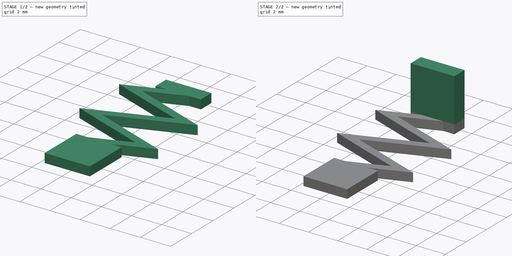
[diagram: build sequence overview — one tinted view per stage of 2, left to right]
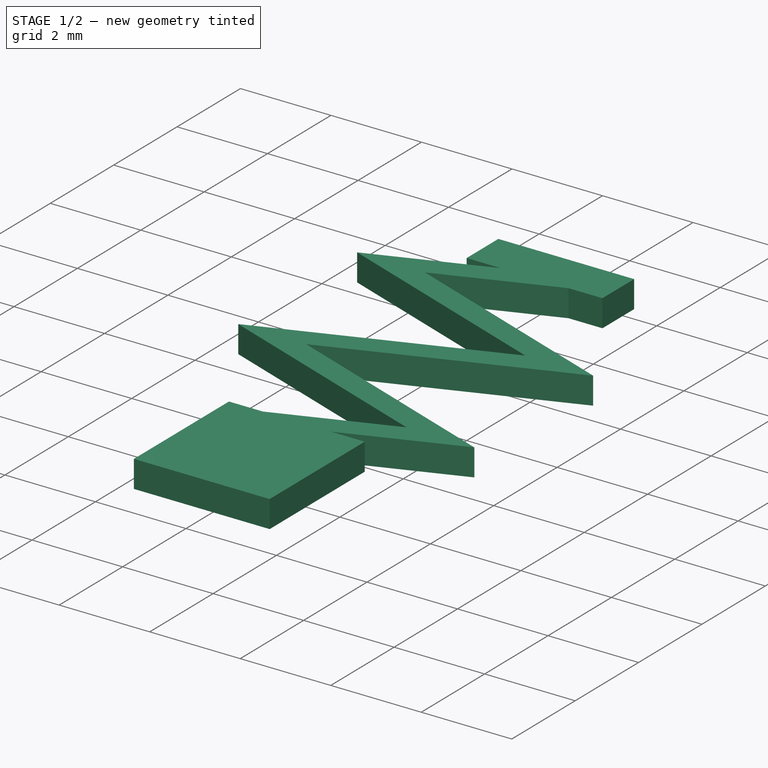
[diagram: stage 1 of 2 — iso view after this stage's code; geometry added in this stage tinted green]
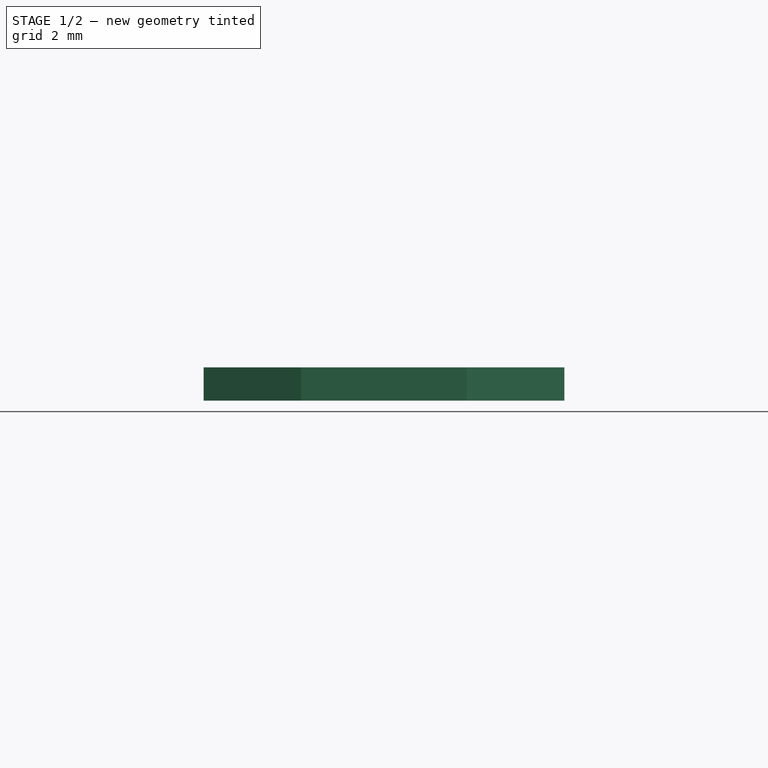
[diagram: stage 1 of 2 — front view after this stage's code; geometry added in this stage tinted green]
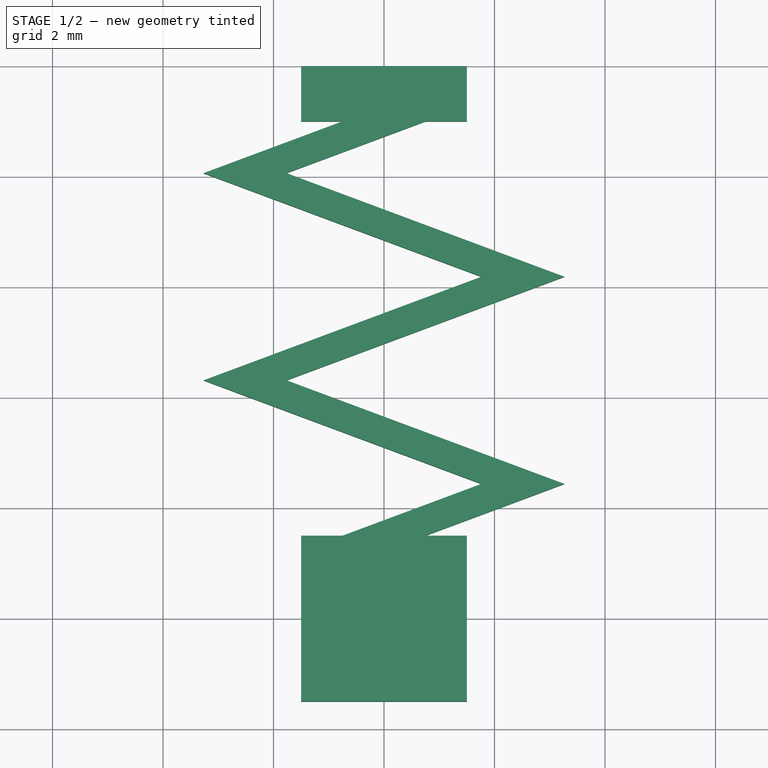
[diagram: stage 1 of 2 — top view after this stage's code; geometry added in this stage tinted green]
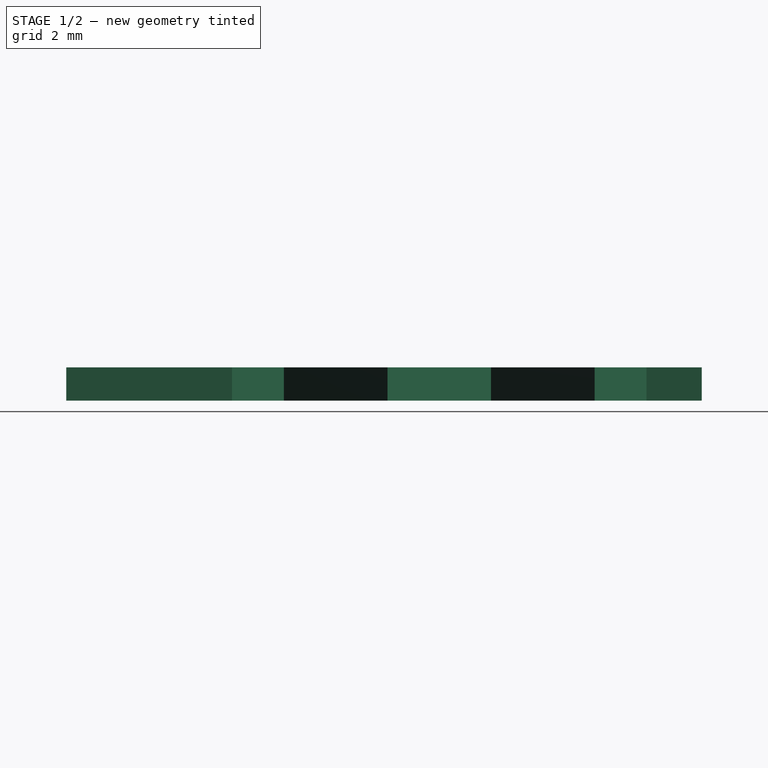
[diagram: stage 1 of 2 — right view after this stage's code; geometry added in this stage tinted green]
FCSTD DOCUMENT  (FreeCAD 0.16R6348 (Git))
Label: MoveSpring
License: All rights reserved
LicenseURL: http://en.wikipedia.org/wiki/All_rights_reserved
objects: Sketcher::SketchObject×2, PartDesign::Pad×2
note: 6 computed .brp shape members not serialized (recipe doc carries the construction recipe); baked Part::Feature solids carry a one-line shape summary decoded from their .brp

FEATURE [Sketcher::SketchObject] Sketch
  sketch-geometry (34):
    g0: LineSegment StartX=-0.75 StartY=1.5 StartZ=0 EndX=-1.5 EndY=1.5 EndZ=0
    g1: LineSegment StartX=-1.5 StartY=1.5 StartZ=0 EndX=-1.5 EndY=-1.5 EndZ=0
    g2: LineSegment StartX=-1.5 StartY=-1.5 StartZ=0 EndX=1.5 EndY=-1.5 EndZ=0
    g3: LineSegment StartX=1.5 StartY=-1.5 StartZ=0 EndX=1.5 EndY=1.5 EndZ=0
    g4: LineSegment StartX=1.5 StartY=1.5 StartZ=0 EndX=0.75 EndY=1.5 EndZ=0
    g5: LineSegment StartX=-1.5 StartY=9 StartZ=0 EndX=-1.5 EndY=10 EndZ=0
    g6: LineSegment StartX=-1.5 StartY=10 StartZ=0 EndX=1.5 EndY=10 EndZ=0
    g7: LineSegment StartX=1.5 StartY=10 StartZ=0 EndX=1.5 EndY=9 EndZ=0
    g8: LineSegment StartX=-1.5 StartY=9 StartZ=0 EndX=-0.75 EndY=9 EndZ=0
    g9: LineSegment StartX=1.5 StartY=9 StartZ=0 EndX=0.75 EndY=9 EndZ=0
    g10: LineSegment [constr] StartX=0 StartY=9 StartZ=0 EndX=0 EndY=8.0625 EndZ=0
    g11: LineSegment [constr] StartX=0 StartY=8.0625 StartZ=0 EndX=0 EndY=6.1875 EndZ=0
    g12: LineSegment [constr] StartX=0 StartY=6.1875 StartZ=0 EndX=0 EndY=4.3125 EndZ=0
    g13: LineSegment [constr] StartX=0 StartY=4.3125 StartZ=0 EndX=0 EndY=2.4375 EndZ=0
    g14: LineSegment [constr] StartX=0 StartY=2.4375 StartZ=0 EndX=0 EndY=1.5 EndZ=0
    g15: LineSegment [constr] StartX=0 StartY=2.4375 StartZ=0 EndX=3.2646 EndY=2.4375 EndZ=0
    g16: LineSegment [constr] StartX=0 StartY=4.3125 StartZ=0 EndX=-3.2646 EndY=4.3125 EndZ=0
    g17: LineSegment [constr] StartX=0 StartY=6.1875 StartZ=0 EndX=3.2646 EndY=6.1875 EndZ=0
    g18: LineSegment [constr] StartX=0 StartY=8.0625 StartZ=0 EndX=-3.2646 EndY=8.0625 EndZ=0
    g19: GeomPoint [constr] X=1.7646 Y=2.4375 Z=0
    g20: GeomPoint [constr] X=-1.7646 Y=4.3125 Z=0
    g21: GeomPoint [constr] X=1.7646 Y=6.1875 Z=0
    g22: GeomPoint [constr] X=-1.7646 Y=8.0625 Z=0
    g23: LineSegment StartX=0.75 StartY=1.5 StartZ=0 EndX=3.2646 EndY=2.4375 EndZ=0
    g24: LineSegment StartX=3.2646 StartY=2.4375 StartZ=0 EndX=-1.7646 EndY=4.3125 EndZ=0
    g25: LineSegment StartX=-1.7646 StartY=4.3125 StartZ=0 EndX=3.2646 EndY=6.1875 EndZ=0
    g26: LineSegment StartX=3.2646 StartY=6.1875 StartZ=0 EndX=-1.7646 EndY=8.0625 EndZ=0
    g27: LineSegment StartX=-1.7646 StartY=8.0625 StartZ=0 EndX=0.75 EndY=9 EndZ=0
    g28: LineSegment StartX=-0.75 StartY=9 StartZ=0 EndX=-3.2646 EndY=8.0625 EndZ=0
    g29: LineSegment StartX=-3.2646 StartY=8.0625 StartZ=0 EndX=1.7646 EndY=6.1875 EndZ=0
    g30: LineSegment StartX=1.7646 StartY=6.1875 StartZ=0 EndX=-3.2646 EndY=4.3125 EndZ=0
    g31: LineSegment StartX=-3.2646 StartY=4.3125 StartZ=0 EndX=1.7646 EndY=2.4375 EndZ=0
    g32: LineSegment StartX=1.7646 StartY=2.4375 StartZ=0 EndX=-0.75 EndY=1.5 EndZ=0
    g33: LineSegment [constr] StartX=0 StartY=8.0625 StartZ=0 EndX=0 EndY=7.125 EndZ=0
  constraints (86):
    c: Horizontal(g0)
    c: Coincident(g0,g1)
    c: Vertical(g1)
    c: Coincident(g1,g2)
    c: Horizontal(g2)
    c: Coincident(g2,g3)
    c: Vertical(g3)
    c: Coincident(g3,g4)
    c: Horizontal(g4)
    c: Equal(g1,g2)
    c: Equal(g2,g3)
    c: Distance(g2) = 3
    c: Symmetric(g1,g3,g-1)
    c: Vertical(g5)
    c: Coincident(g5,g6)
    c: Coincident(g6,g7)
    c: Vertical(g7)
    c: Equal(g5,g7)
    c: Distance(g6) = 3
    c: Distance(g5) = 1
    c: Symmetric(g5,g6,g-2)
    c: DistanceY(g-1,g6) = 10
    c: Symmetric(g0,g4,g-2)
    c: DistanceX(g0,g4) = 1.5
    c: Coincident(g8,g5)
    c: Horizontal(g8)
    c: Coincident(g9,g7)
    c: Horizontal(g9)
    c: Symmetric(g8,g9,g-2)
    c: DistanceX(g8,g9) = 1.5
    c: Vertical(g10)
    c: Coincident(g10,g11)
    c: Coincident(g11,g12)
    c: Vertical(g12)
    c: Coincident(g12,g13)
    c: Vertical(g13)
    c: Coincident(g13,g14)
    c: Vertical(g14)
    c: Equal(g13,g12)
    c: Equal(g12,g11)
    c: Symmetric(g0,g4,g14)
    c: Symmetric(g8,g9,g10)
    c: Coincident(g15,g13)
    c: Horizontal(g15)
    c: Coincident(g16,g12)
    c: Horizontal(g16)
    c: Horizontal(g17)
    c: Coincident(g18,g10)
    c: Horizontal(g18)
    c: Coincident(g17,g11)
    c: Equal(g16,g17)
    c: Equal(g17,g18)
    c: Equal(g18,g15)
    c: PointOnObject(g19,g15)
    c: PointOnObject(g20,g16)
    c: PointOnObject(g21,g17)
    c: PointOnObject(g22,g18)
    c: Distance(g19,g15) = 1.5
    c: Distance(g20,g16) = 1.5
    c: Distance(g21,g17) = 1.5
    c: Distance(g22,g18) = 1.5
    c: Coincident(g4,g23)
    c: Coincident(g23,g15)
    c: Coincident(g23,g24)
    c: Coincident(g24,g20)
    c: Coincident(g24,g25)
    c: Coincident(g25,g17)
    c: Coincident(g25,g26)
    c: Coincident(g26,g22)
    c: Coincident(g26,g27)
    c: Coincident(g27,g9)
    c: Coincident(g8,g28)
    c: Coincident(g28,g18)
    c: Coincident(g28,g29)
    c: Coincident(g29,g21)
    c: Coincident(g29,g30)
    c: Coincident(g30,g16)
    c: Coincident(g30,g31)
    c: Coincident(g31,g19)
    c: Coincident(g31,g32)
    c: Coincident(g32,g0)
    c: Equal(g14,g10)
    c: Vertical(g33)
    c: Equal(g33,g10)
    c: Symmetric(g11,g10,g33)
    c: Coincident(g33,g10)
FEATURE [PartDesign::Pad] Pad
  Length = 0.6
  Length2 = 100
  Sketch = -> Sketch
  Type = 0
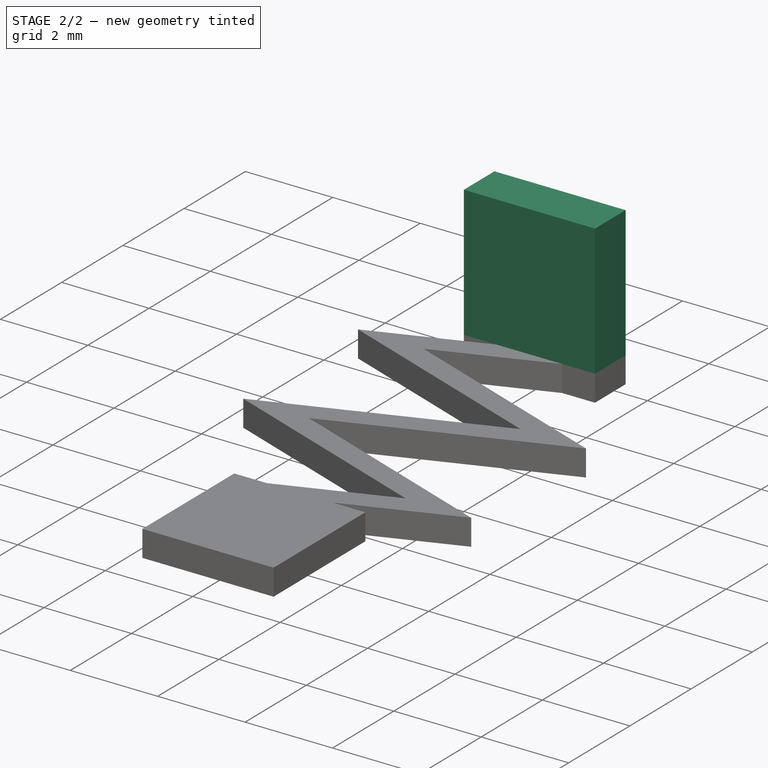
[diagram: stage 2 of 2 — iso view after this stage's code; geometry added in this stage tinted green]
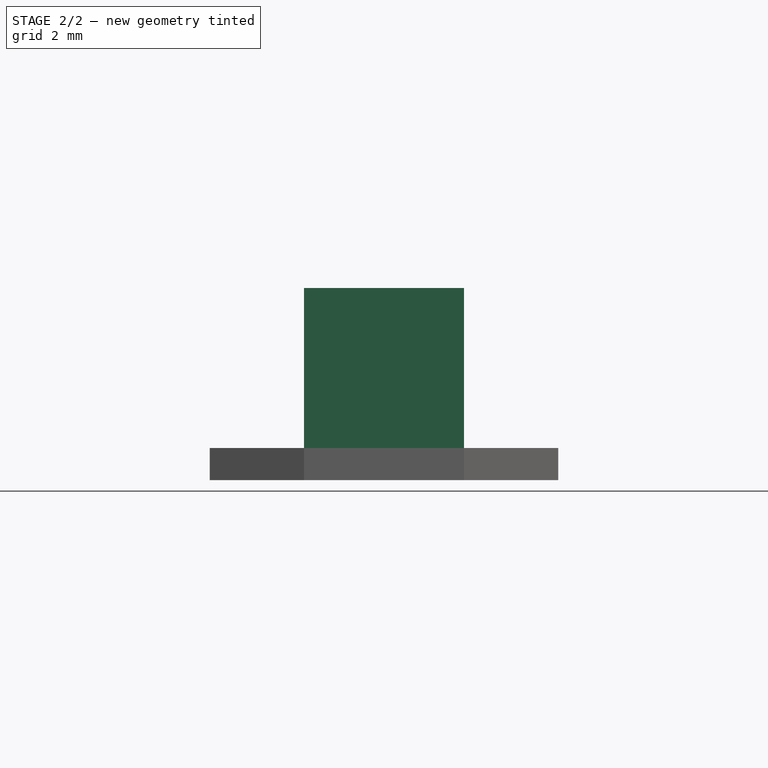
[diagram: stage 2 of 2 — front view after this stage's code; geometry added in this stage tinted green]
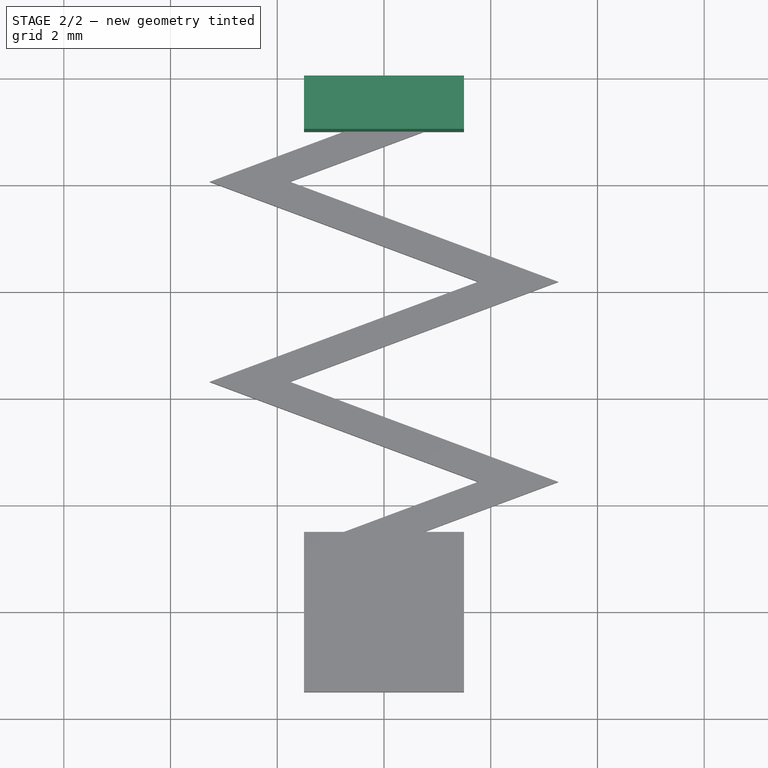
[diagram: stage 2 of 2 — top view after this stage's code; geometry added in this stage tinted green]
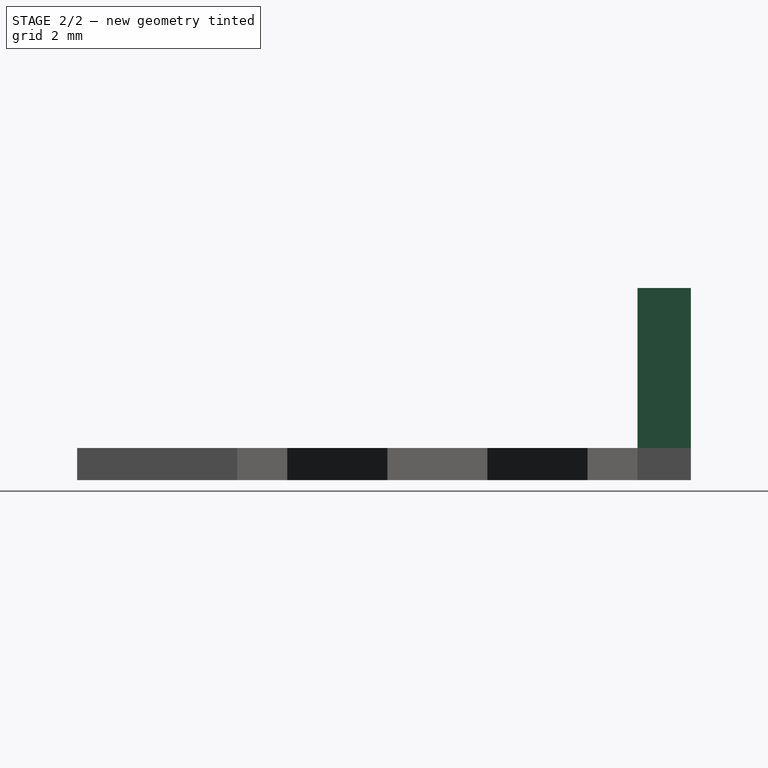
[diagram: stage 2 of 2 — right view after this stage's code; geometry added in this stage tinted green]
FEATURE [Sketcher::SketchObject] Sketch001
  ExternalGeometry = -> [Pad]
  Placement = pos=(0,0,0.6) rot=(0,0,1;0rad)
  Support = -> Pad [Face22]
  sketch-geometry (4):
    g0: LineSegment StartX=-1.5 StartY=10 StartZ=0 EndX=1.5 EndY=10 EndZ=0
    g1: LineSegment StartX=1.5 StartY=10 StartZ=0 EndX=1.5 EndY=9 EndZ=0
    g2: LineSegment StartX=1.5 StartY=9 StartZ=0 EndX=-1.5 EndY=9 EndZ=0
    g3: LineSegment StartX=-1.5 StartY=9 StartZ=0 EndX=-1.5 EndY=10 EndZ=0
  constraints (10):
    c: Coincident(g0,g1)
    c: Coincident(g1,g2)
    c: Coincident(g2,g3)
    c: Coincident(g3,g0)
    c: Horizontal(g0)
    c: Horizontal(g2)
    c: Vertical(g1)
    c: Vertical(g3)
    c: Coincident(g0,g-3)
    c: Coincident(g1,g-4)
FEATURE [PartDesign::Pad] Pad001
  Length = 3
  Length2 = 100
  Sketch = -> Sketch001
  Type = 0
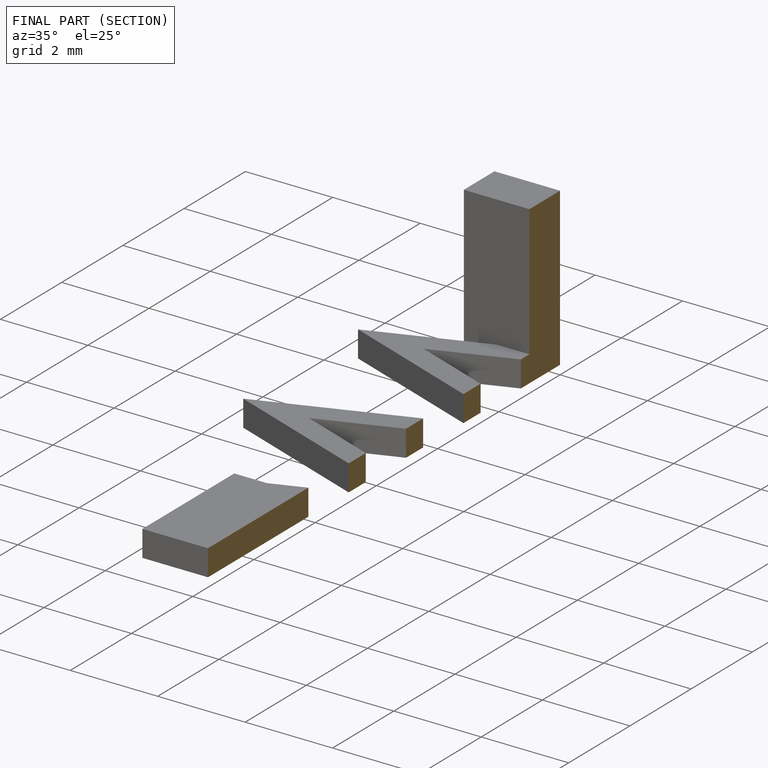
[diagram: finished part — half-section view (interior)]
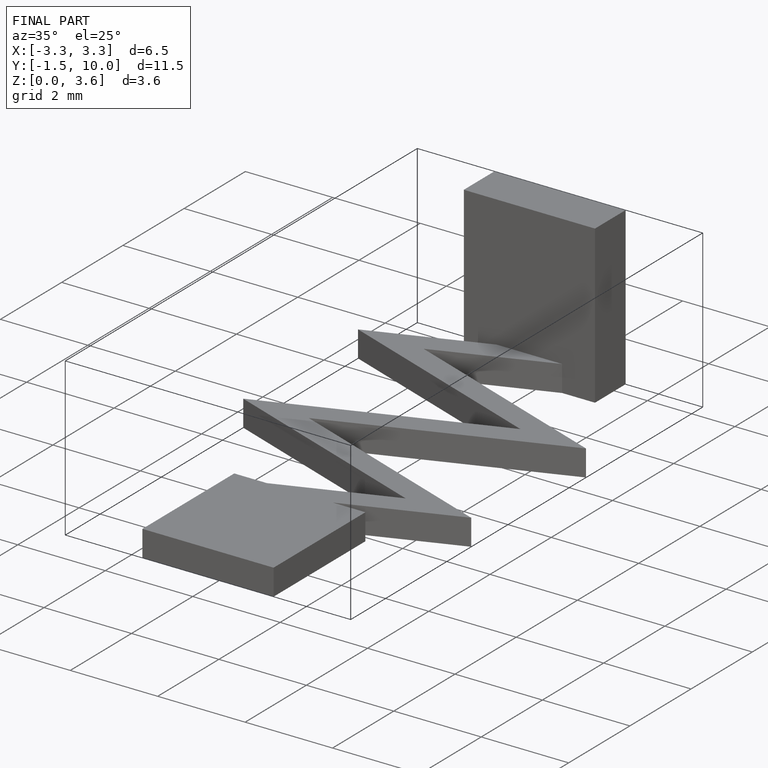
[diagram: finished part — iso view with bounding-box wireframe]
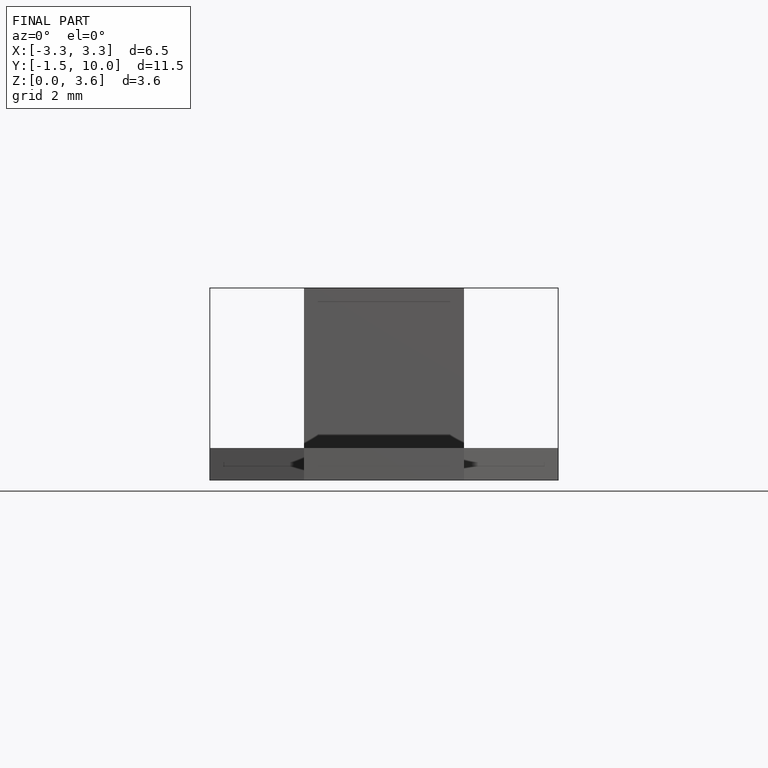
[diagram: finished part — front view with bounding-box wireframe]
